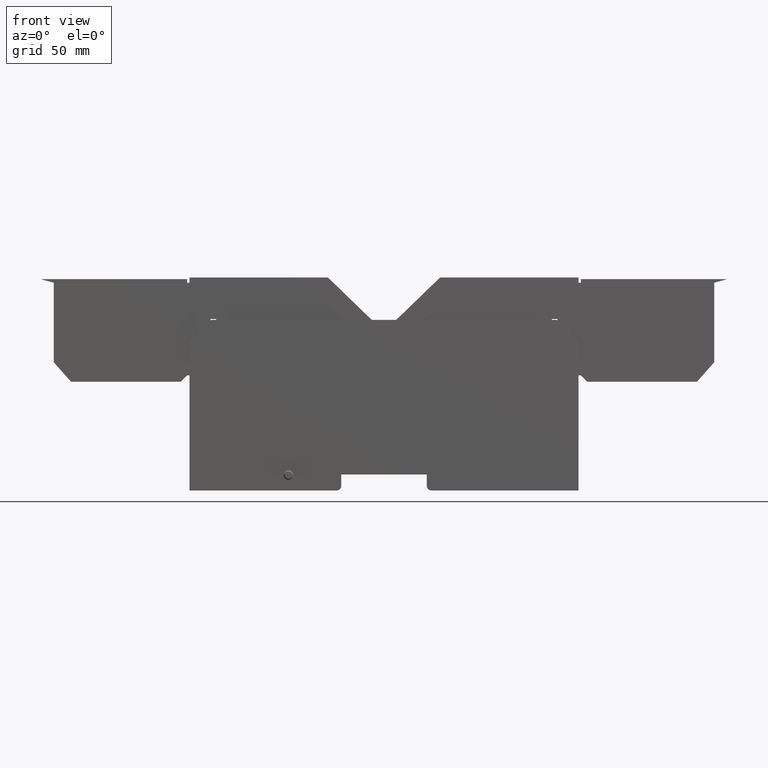
[diagram: clean part render]
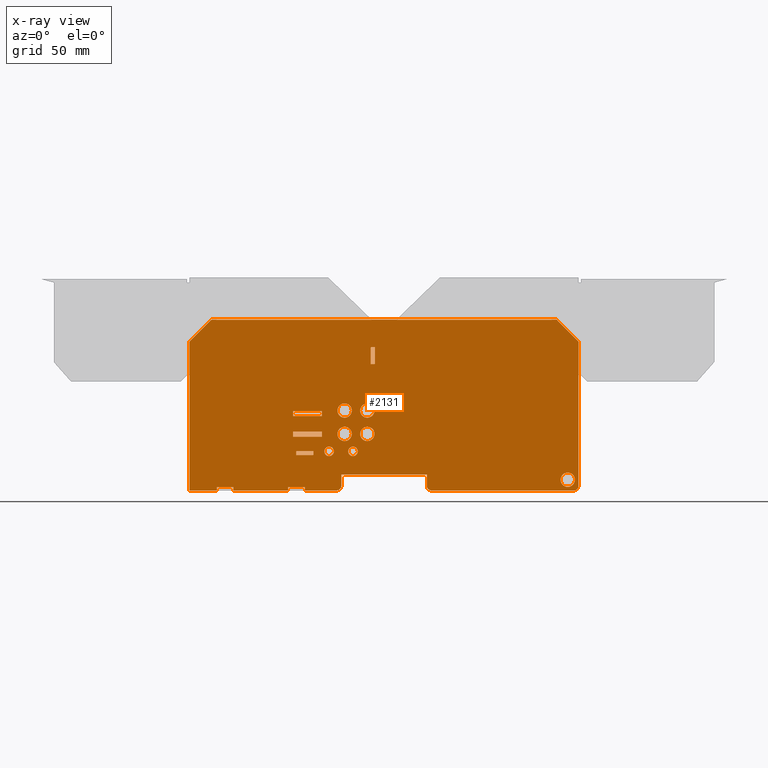
[diagram: x-ray — body ghosted, one internal face saturated and labeled with its STEP entity id]
A machine part, front view, then the same camera in x-ray: the body is ghosted and one INTERNAL B-rep face — a face not visible from any outside direction — is saturated and labeled: STEP entity #2131.
In plain terms, the highlighted planar face has unit normal (0, -1, 0).
Its self-contained STEP definition (entity closure, byte-faithful):
#77=CIRCLE('',#2294,3.);
#80=CIRCLE('',#2299,2.);
#81=CIRCLE('',#2301,2.);
#82=CIRCLE('',#2302,2.);
#83=CIRCLE('',#2303,2.);
#84=CIRCLE('',#2304,2.);
#85=CIRCLE('',#2305,3.);
#86=CIRCLE('',#2306,3.);
#87=CIRCLE('',#2307,3.);
#88=CIRCLE('',#2308,3.);
#184=ORIENTED_EDGE('',*,*,#739,.F.);
#185=ORIENTED_EDGE('',*,*,#740,.T.);
#186=ORIENTED_EDGE('',*,*,#741,.T.);
#187=ORIENTED_EDGE('',*,*,#742,.F.);
#188=ORIENTED_EDGE('',*,*,#743,.T.);
#189=ORIENTED_EDGE('',*,*,#744,.T.);
#190=ORIENTED_EDGE('',*,*,#745,.T.);
#191=ORIENTED_EDGE('',*,*,#746,.T.);
#192=ORIENTED_EDGE('',*,*,#747,.F.);
#193=ORIENTED_EDGE('',*,*,#748,.F.);
#194=ORIENTED_EDGE('',*,*,#749,.T.);
#195=ORIENTED_EDGE('',*,*,#750,.T.);
#196=ORIENTED_EDGE('',*,*,#751,.T.);
#197=ORIENTED_EDGE('',*,*,#752,.F.);
#198=ORIENTED_EDGE('',*,*,#753,.T.);
#199=ORIENTED_EDGE('',*,*,#754,.T.);
#200=ORIENTED_EDGE('',*,*,#755,.T.);
#201=ORIENTED_EDGE('',*,*,#756,.F.);
#202=ORIENTED_EDGE('',*,*,#757,.T.);
#203=ORIENTED_EDGE('',*,*,#758,.F.);
#204=ORIENTED_EDGE('',*,*,#737,.F.);
#205=ORIENTED_EDGE('',*,*,#733,.T.);
#206=ORIENTED_EDGE('',*,*,#759,.F.);
#207=ORIENTED_EDGE('',*,*,#760,.F.);
#208=ORIENTED_EDGE('',*,*,#761,.F.);
#209=ORIENTED_EDGE('',*,*,#762,.F.);
#210=ORIENTED_EDGE('',*,*,#763,.F.);
#211=ORIENTED_EDGE('',*,*,#764,.F.);
#212=ORIENTED_EDGE('',*,*,#720,.F.);
#213=ORIENTED_EDGE('',*,*,#726,.T.);
#214=ORIENTED_EDGE('',*,*,#722,.T.);
#215=ORIENTED_EDGE('',*,*,#725,.T.);
#216=ORIENTED_EDGE('',*,*,#765,.F.);
#217=ORIENTED_EDGE('',*,*,#766,.T.);
#218=ORIENTED_EDGE('',*,*,#767,.F.);
#219=ORIENTED_EDGE('',*,*,#768,.F.);
#220=ORIENTED_EDGE('',*,*,#769,.F.);
#221=ORIENTED_EDGE('',*,*,#770,.T.);
#222=ORIENTED_EDGE('',*,*,#771,.T.);
#223=ORIENTED_EDGE('',*,*,#772,.T.);
#224=ORIENTED_EDGE('',*,*,#773,.T.);
#225=ORIENTED_EDGE('',*,*,#774,.T.);
#226=ORIENTED_EDGE('',*,*,#775,.T.);
#227=ORIENTED_EDGE('',*,*,#776,.F.);
#720=EDGE_CURVE('',#1005,#1006,#1214,.T.);
#722=EDGE_CURVE('',#1007,#1008,#1216,.T.);
#725=EDGE_CURVE('',#1008,#1006,#1219,.T.);
#726=EDGE_CURVE('',#1005,#1007,#1220,.T.);
#733=EDGE_CURVE('',#1015,#1015,#77,.T.);
#737=EDGE_CURVE('',#1019,#1020,#80,.T.);
#739=EDGE_CURVE('',#1021,#1019,#1223,.T.);
#740=EDGE_CURVE('',#1021,#1022,#81,.T.);
#741=EDGE_CURVE('',#1022,#1023,#1224,.T.);
#742=EDGE_CURVE('',#1024,#1023,#1225,.T.);
#743=EDGE_CURVE('',#1024,#1025,#1226,.T.);
#744=EDGE_CURVE('',#1025,#1026,#82,.T.);
#745=EDGE_CURVE('',#1026,#1027,#1227,.T.);
#746=EDGE_CURVE('',#1027,#1028,#1228,.T.);
#747=EDGE_CURVE('',#1029,#1028,#1229,.T.);
#748=EDGE_CURVE('',#1030,#1029,#1230,.T.);
#749=EDGE_CURVE('',#1030,#1031,#1231,.T.);
#750=EDGE_CURVE('',#1031,#1032,#1232,.T.);
#751=EDGE_CURVE('',#1032,#1033,#1233,.T.);
#752=EDGE_CURVE('',#1034,#1033,#1234,.T.);
#753=EDGE_CURVE('',#1034,#1035,#1235,.T.);
#754=EDGE_CURVE('',#1035,#1036,#1236,.T.);
#755=EDGE_CURVE('',#1036,#1037,#1237,.T.);
#756=EDGE_CURVE('',#1038,#1037,#1238,.T.);
#757=EDGE_CURVE('',#1038,#1039,#1239,.T.);
#758=EDGE_CURVE('',#1020,#1039,#1240,.T.);
#759=EDGE_CURVE('',#1040,#1040,#83,.T.);
#760=EDGE_CURVE('',#1041,#1041,#84,.T.);
#761=EDGE_CURVE('',#1042,#1042,#85,.T.);
#762=EDGE_CURVE('',#1043,#1043,#86,.T.);
#763=EDGE_CURVE('',#1044,#1044,#87,.T.);
#764=EDGE_CURVE('',#1045,#1045,#88,.T.);
#765=EDGE_CURVE('',#1046,#1047,#1241,.T.);
#766=EDGE_CURVE('',#1046,#1048,#1242,.T.);
#767=EDGE_CURVE('',#1049,#1048,#1243,.T.);
#768=EDGE_CURVE('',#1047,#1049,#1244,.T.);
#769=EDGE_CURVE('',#1050,#1051,#1245,.T.);
#770=EDGE_CURVE('',#1050,#1052,#1246,.T.);
#771=EDGE_CURVE('',#1052,#1053,#1247,.T.);
#772=EDGE_CURVE('',#1053,#1051,#1248,.T.);
#773=EDGE_CURVE('',#1054,#1055,#1249,.T.);
#774=EDGE_CURVE('',#1055,#1056,#1250,.T.);
#775=EDGE_CURVE('',#1056,#1057,#1251,.T.);
#776=EDGE_CURVE('',#1054,#1057,#1252,.T.);
#1005=VERTEX_POINT('',#3109);
#1006=VERTEX_POINT('',#3111);
#1007=VERTEX_POINT('',#3115);
#1008=VERTEX_POINT('',#3116);
#1015=VERTEX_POINT('',#3142);
#1019=VERTEX_POINT('',#3151);
#1020=VERTEX_POINT('',#3153);
#1021=VERTEX_POINT('',#3157);
#1022=VERTEX_POINT('',#3159);
#1023=VERTEX_POINT('',#3161);
#1024=VERTEX_POINT('',#3163);
#1025=VERTEX_POINT('',#3165);
#1026=VERTEX_POINT('',#3167);
#1027=VERTEX_POINT('',#3169);
#1028=VERTEX_POINT('',#3171);
#1029=VERTEX_POINT('',#3173);
#1030=VERTEX_POINT('',#3175);
#1031=VERTEX_POINT('',#3177);
#1032=VERTEX_POINT('',#3179);
#1033=VERTEX_POINT('',#3181);
#1034=VERTEX_POINT('',#3183);
#1035=VERTEX_POINT('',#3185);
#1036=VERTEX_POINT('',#3187);
#1037=VERTEX_POINT('',#3189);
#1038=VERTEX_POINT('',#3191);
#1039=VERTEX_POINT('',#3193);
#1040=VERTEX_POINT('',#3196);
#1041=VERTEX_POINT('',#3198);
#1042=VERTEX_POINT('',#3200);
#1043=VERTEX_POINT('',#3202);
#1044=VERTEX_POINT('',#3204);
#1045=VERTEX_POINT('',#3206);
#1046=VERTEX_POINT('',#3208);
#1047=VERTEX_POINT('',#3209);
#1048=VERTEX_POINT('',#3211);
#1049=VERTEX_POINT('',#3213);
#1050=VERTEX_POINT('',#3216);
#1051=VERTEX_POINT('',#3217);
#1052=VERTEX_POINT('',#3219);
#1053=VERTEX_POINT('',#3221);
#1054=VERTEX_POINT('',#3224);
#1055=VERTEX_POINT('',#3225);
#1056=VERTEX_POINT('',#3227);
#1057=VERTEX_POINT('',#3229);
#1214=LINE('',#3110,#1450);
#1216=LINE('',#3114,#1452);
#1219=LINE('',#3120,#1455);
#1220=LINE('',#3122,#1456);
#1223=LINE('',#3156,#1459);
#1224=LINE('',#3160,#1460);
#1225=LINE('',#3162,#1461);
#1226=LINE('',#3164,#1462);
#1227=LINE('',#3168,#1463);
#1228=LINE('',#3170,#1464);
#1229=LINE('',#3172,#1465);
#1230=LINE('',#3174,#1466);
#1231=LINE('',#3176,#1467);
#1232=LINE('',#3178,#1468);
#1233=LINE('',#3180,#1469);
#1234=LINE('',#3182,#1470);
#1235=LINE('',#3184,#1471);
#1236=LINE('',#3186,#1472);
#1237=LINE('',#3188,#1473);
#1238=LINE('',#3190,#1474);
#1239=LINE('',#3192,#1475);
#1240=LINE('',#3194,#1476);
#1241=LINE('',#3207,#1477);
#1242=LINE('',#3210,#1478);
#1243=LINE('',#3212,#1479);
#1244=LINE('',#3214,#1480);
#1245=LINE('',#3215,#1481);
#1246=LINE('',#3218,#1482);
#1247=LINE('',#3220,#1483);
#1248=LINE('',#3222,#1484);
#1249=LINE('',#3223,#1485);
#1250=LINE('',#3226,#1486);
#1251=LINE('',#3228,#1487);
#1252=LINE('',#3230,#1488);
#1450=VECTOR('',#2492,1000.);
#1452=VECTOR('',#2496,1000.);
#1455=VECTOR('',#2501,1000.);
#1456=VECTOR('',#2504,1000.);
#1459=VECTOR('',#2545,1000.);
#1460=VECTOR('',#2548,1000.);
#1461=VECTOR('',#2549,1000.);
#1462=VECTOR('',#2550,1000.);
#1463=VECTOR('',#2553,1000.);
#1464=VECTOR('',#2554,1000.);
#1465=VECTOR('',#2555,1000.);
#1466=VECTOR('',#2556,1000.);
#1467=VECTOR('',#2557,1000.);
#1468=VECTOR('',#2558,1000.);
#1469=VECTOR('',#2559,1000.);
#1470=VECTOR('',#2560,1000.);
#1471=VECTOR('',#2561,1000.);
#1472=VECTOR('',#2562,1000.);
#1473=VECTOR('',#2563,1000.);
#1474=VECTOR('',#2564,1000.);
#1475=VECTOR('',#2565,1000.);
#1476=VECTOR('',#2566,1000.);
#1477=VECTOR('',#2579,1000.);
#1478=VECTOR('',#2580,1000.);
#1479=VECTOR('',#2581,1000.);
#1480=VECTOR('',#2582,1000.);
#1481=VECTOR('',#2583,1000.);
#1482=VECTOR('',#2584,1000.);
#1483=VECTOR('',#2585,1000.);
#1484=VECTOR('',#2586,1000.);
#1485=VECTOR('',#2587,1000.);
#1486=VECTOR('',#2588,1000.);
#1487=VECTOR('',#2589,1000.);
#1488=VECTOR('',#2590,1000.);
#1694=EDGE_LOOP('',(#184,#185,#186,#187,#188,#189,#190,#191,#192,#193,#194,
#195,#196,#197,#198,#199,#200,#201,#202,#203,#204));
#1695=EDGE_LOOP('',(#205));
#1696=EDGE_LOOP('',(#206));
#1697=EDGE_LOOP('',(#207));
#1698=EDGE_LOOP('',(#208));
#1699=EDGE_LOOP('',(#209));
#1700=EDGE_LOOP('',(#210));
#1701=EDGE_LOOP('',(#211));
#1702=EDGE_LOOP('',(#212,#213,#214,#215));
#1703=EDGE_LOOP('',(#216,#217,#218,#219));
#1704=EDGE_LOOP('',(#220,#221,#222,#223));
#1705=EDGE_LOOP('',(#224,#225,#226,#227));
#1866=FACE_BOUND('',#1694,.T.);
#1867=FACE_BOUND('',#1695,.T.);
#1868=FACE_BOUND('',#1696,.T.);
#1869=FACE_BOUND('',#1697,.T.);
#1870=FACE_BOUND('',#1698,.T.);
#1871=FACE_BOUND('',#1699,.T.);
#1872=FACE_BOUND('',#1700,.T.);
#1873=FACE_BOUND('',#1701,.T.);
#1874=FACE_BOUND('',#1702,.T.);
#1875=FACE_BOUND('',#1703,.T.);
#1876=FACE_BOUND('',#1704,.T.);
#1877=FACE_BOUND('',#1705,.T.);
#2025=PLANE('',#2300);
#2131=ADVANCED_FACE('',(#1866,#1867,#1868,#1869,#1870,#1871,#1872,#1873,
#1874,#1875,#1876,#1877),#2025,.F.);
#2294=AXIS2_PLACEMENT_3D('',#3141,#2529,#2530);
#2299=AXIS2_PLACEMENT_3D('',#3152,#2540,#2541);
#2300=AXIS2_PLACEMENT_3D('',#3155,#2543,#2544);
#2301=AXIS2_PLACEMENT_3D('',#3158,#2546,#2547);
#2302=AXIS2_PLACEMENT_3D('',#3166,#2551,#2552);
#2303=AXIS2_PLACEMENT_3D('',#3195,#2567,#2568);
#2304=AXIS2_PLACEMENT_3D('',#3197,#2569,#2570);
#2305=AXIS2_PLACEMENT_3D('',#3199,#2571,#2572);
#2306=AXIS2_PLACEMENT_3D('',#3201,#2573,#2574);
#2307=AXIS2_PLACEMENT_3D('',#3203,#2575,#2576);
#2308=AXIS2_PLACEMENT_3D('',#3205,#2577,#2578);
#2492=DIRECTION('',(-1.38777878078145E-15,0.,-1.));
#2496=DIRECTION('',(-1.38777878078145E-15,0.,-1.));
#2501=DIRECTION('',(1.,0.,-1.38777878078145E-15));
#2504=DIRECTION('',(-1.,0.,1.38777878078145E-15));
#2529=DIRECTION('',(0.,-1.,0.));
#2530=DIRECTION('',(-1.,0.,0.));
#2540=DIRECTION('',(0.,-1.,0.));
#2541=DIRECTION('',(-1.,0.,0.));
#2543=DIRECTION('',(0.,-1.,0.));
#2544=DIRECTION('',(0.,0.,-1.));
#2545=DIRECTION('',(1.,0.,-5.78241158658936E-15));
#2546=DIRECTION('',(0.,1.,0.));
#2547=DIRECTION('',(0.,0.,1.));
#2548=DIRECTION('',(5.90544162034658E-15,0.,1.));
#2549=DIRECTION('',(1.,0.,0.));
#2550=DIRECTION('',(7.38180202543323E-15,0.,-1.));
#2551=DIRECTION('',(0.,1.,0.));
#2552=DIRECTION('',(0.,0.,1.));
#2553=DIRECTION('',(-1.,0.,-5.78241158658936E-15));
#2554=DIRECTION('',(0.,0.,1.));
#2555=DIRECTION('',(1.,0.,0.));
#2556=DIRECTION('',(0.,0.,1.));
#2557=DIRECTION('',(-1.,0.,-5.78241158658936E-15));
#2558=DIRECTION('',(0.,0.,1.));
#2559=DIRECTION('',(-1.,0.,0.));
#2560=DIRECTION('',(0.,0.,1.));
#2561=DIRECTION('',(-1.,0.,-5.78241158658936E-15));
#2562=DIRECTION('',(1.98254111540207E-15,0.,1.));
#2563=DIRECTION('',(0.707106781186599,0.,0.707106781186496));
#2564=DIRECTION('',(-1.,0.,0.));
#2565=DIRECTION('',(0.707106781186606,0.,-0.707106781186489));
#2566=DIRECTION('',(-1.98254111540207E-15,0.,1.));
#2567=DIRECTION('',(0.,1.,0.));
#2568=DIRECTION('',(0.,0.,1.));
#2569=DIRECTION('',(0.,1.,0.));
#2570=DIRECTION('',(0.,0.,1.));
#2571=DIRECTION('',(0.,1.,0.));
#2572=DIRECTION('',(0.,0.,1.));
#2573=DIRECTION('',(0.,1.,0.));
#2574=DIRECTION('',(-1.,0.,0.));
#2575=DIRECTION('',(0.,1.,0.));
#2576=DIRECTION('',(0.,0.,1.));
#2577=DIRECTION('',(0.,1.,0.));
#2578=DIRECTION('',(-1.,0.,0.));
#2579=DIRECTION('',(0.,0.,-1.));
#2580=DIRECTION('',(-1.,0.,0.));
#2581=DIRECTION('',(0.,0.,1.));
#2582=DIRECTION('',(-1.,0.,0.));
#2583=DIRECTION('',(0.,0.,-1.));
#2584=DIRECTION('',(-1.,0.,0.));
#2585=DIRECTION('',(0.,0.,-1.));
#2586=DIRECTION('',(1.,0.,0.));
#2587=DIRECTION('',(1.,0.,0.));
#2588=DIRECTION('',(0.,0.,1.));
#2589=DIRECTION('',(-1.,0.,0.));
#2590=DIRECTION('',(0.,0.,1.));
#3109=CARTESIAN_POINT('',(-29.65,27.5,-15.6900000000002));
#3110=CARTESIAN_POINT('',(-29.65,27.5,-16.4364337369843));
#3111=CARTESIAN_POINT('',(-29.65,27.5,-17.3497397922821));
#3114=CARTESIAN_POINT('',(-36.75,27.5,-16.4364337369843));
#3115=CARTESIAN_POINT('',(-36.75,27.5,-15.6900000000002));
#3116=CARTESIAN_POINT('',(-36.75,27.5,-17.349739792282));
#3120=CARTESIAN_POINT('',(-29.65,27.5,-17.3497397922821));
#3122=CARTESIAN_POINT('',(-29.65,27.5,-15.6900000000002));
#3141=CARTESIAN_POINT('',(77.0000000000001,27.5,-27.6900000000008));
#3142=CARTESIAN_POINT('',(74.0000000000001,27.5,-27.6900000000008));
#3151=CARTESIAN_POINT('',(79.5000000000002,27.5,-32.1900000000008));
#3152=CARTESIAN_POINT('',(79.5000000000002,27.5,-30.1900000000008));
#3153=CARTESIAN_POINT('',(81.5000000000002,27.5,-30.1900000000008));
#3155=CARTESIAN_POINT('',(79.5000000000002,27.5,-30.1900000000008));
#3156=CARTESIAN_POINT('',(79.5000000000002,27.5,-32.1900000000008));
#3157=CARTESIAN_POINT('',(19.9,27.5,-32.1900000000005));
#3158=CARTESIAN_POINT('',(19.9,27.5,-30.1900000000005));
#3159=CARTESIAN_POINT('',(17.9,27.5,-30.1900000000005));
#3160=CARTESIAN_POINT('',(17.9,27.5,-30.1900000000005));
#3161=CARTESIAN_POINT('',(17.9,27.5,-25.4900000000005));
#3162=CARTESIAN_POINT('',(-2.30000000000001,27.5,-25.4900000000005));
#3163=CARTESIAN_POINT('',(-17.9,27.5,-25.4900000000005));
#3164=CARTESIAN_POINT('',(-17.9,27.5,-25.4900000000005));
#3165=CARTESIAN_POINT('',(-17.9,27.5,-30.1900000000005));
#3166=CARTESIAN_POINT('',(-19.9,27.5,-30.1900000000005));
#3167=CARTESIAN_POINT('',(-19.9,27.5,-32.1900000000005));
#3168=CARTESIAN_POINT('',(-79.5000000000002,27.5,-32.1900000000008));
#3169=CARTESIAN_POINT('',(-33.185,27.5,-32.1900000000004));
#3170=CARTESIAN_POINT('',(-33.185,27.5,-29.6900000000009));
#3171=CARTESIAN_POINT('',(-33.185,27.5,-30.7169266654476));
#3172=CARTESIAN_POINT('',(-33.185,27.5,-30.7169266654476));
#3173=CARTESIAN_POINT('',(-40.185,27.5,-30.7169266654476));
#3174=CARTESIAN_POINT('',(-40.185,27.5,-29.6900000000009));
#3175=CARTESIAN_POINT('',(-40.185,27.5,-32.1900000000005));
#3176=CARTESIAN_POINT('',(-79.5000000000002,27.5,-32.1900000000008));
#3177=CARTESIAN_POINT('',(-63.06,27.5,-32.1900000000007));
#3178=CARTESIAN_POINT('',(-63.06,27.5,-29.5326948246166));
#3179=CARTESIAN_POINT('',(-63.06,27.5,-30.7169266654476));
#3180=CARTESIAN_POINT('',(-63.06,27.5,-30.7169266654476));
#3181=CARTESIAN_POINT('',(-70.06,27.5,-30.7169266654476));
#3182=CARTESIAN_POINT('',(-70.06,27.5,-29.5326948246166));
#3183=CARTESIAN_POINT('',(-70.06,27.5,-32.1900000000008));
#3184=CARTESIAN_POINT('',(-79.5000000000002,27.5,-32.1900000000008));
#3185=CARTESIAN_POINT('',(-81.5000000000002,27.5,-32.1900000000009));
#3186=CARTESIAN_POINT('',(-81.5000000000001,27.5,-23.1900000000008));
#3187=CARTESIAN_POINT('',(-81.5,27.5,30.1900000000008));
#3188=CARTESIAN_POINT('',(-81.5,27.5,30.1900000000008));
#3189=CARTESIAN_POINT('',(-72.3799999999986,27.5,39.3100000000009));
#3190=CARTESIAN_POINT('',(9.,27.5,39.3099999999995));
#3191=CARTESIAN_POINT('',(72.3800000000001,27.5,39.3099999999994));
#3192=CARTESIAN_POINT('',(81.5,27.5,30.1900000000009));
#3193=CARTESIAN_POINT('',(81.5,27.5,30.1900000000009));
#3194=CARTESIAN_POINT('',(81.5000000000001,27.5,-23.1900000000008));
#3195=CARTESIAN_POINT('',(-23.,27.5,-15.79));
#3196=CARTESIAN_POINT('',(-23.,27.5,-13.79));
#3197=CARTESIAN_POINT('',(-13.,27.5,-15.79));
#3198=CARTESIAN_POINT('',(-13.,27.5,-13.79));
#3199=CARTESIAN_POINT('',(-7.,27.5,-8.49000000000001));
#3200=CARTESIAN_POINT('',(-7.,27.5,-5.49000000000001));
#3201=CARTESIAN_POINT('',(-16.5,27.5,-8.49000000000001));
#3202=CARTESIAN_POINT('',(-19.5,27.5,-8.49000000000001));
#3203=CARTESIAN_POINT('',(-16.5,27.5,1.30999999999999));
#3204=CARTESIAN_POINT('',(-16.5,27.5,4.30999999999999));
#3205=CARTESIAN_POINT('',(-7.,27.5,1.30999999999999));
#3206=CARTESIAN_POINT('',(-10.,27.5,1.30999999999999));
#3207=CARTESIAN_POINT('',(-3.90000000000031,27.5,27.81));
#3208=CARTESIAN_POINT('',(-3.90000000000027,27.5,27.81));
#3209=CARTESIAN_POINT('',(-3.90000000000027,27.5,20.81));
#3210=CARTESIAN_POINT('',(-4.64555361755352,27.5,27.81));
#3211=CARTESIAN_POINT('',(-5.56148579429666,27.5,27.81));
#3212=CARTESIAN_POINT('',(-5.56148579429666,27.5,27.81));
#3213=CARTESIAN_POINT('',(-5.56148579429666,27.5,20.81));
#3214=CARTESIAN_POINT('',(-4.64555361755352,27.5,20.81));
#3215=CARTESIAN_POINT('',(-26.05,27.5,2.99648652663257));
#3216=CARTESIAN_POINT('',(-26.05,27.5,1.1242597162395));
#3217=CARTESIAN_POINT('',(-26.05,27.5,-1.00351347336743));
#3218=CARTESIAN_POINT('',(-26.05,27.5,1.1242597162395));
#3219=CARTESIAN_POINT('',(-38.15,27.5,1.1242597162395));
#3220=CARTESIAN_POINT('',(-38.15,27.5,2.99648652663257));
#3221=CARTESIAN_POINT('',(-38.15,27.5,-1.00351347336743));
#3222=CARTESIAN_POINT('',(-26.05,27.5,-1.00351347336743));
#3223=CARTESIAN_POINT('',(-26.05,27.5,-9.65351347336743));
#3224=CARTESIAN_POINT('',(-38.15,27.5,-9.65351347336743));
#3225=CARTESIAN_POINT('',(-26.05,27.5,-9.65351347336743));
#3226=CARTESIAN_POINT('',(-26.05,27.5,-5.86492519435504));
#3227=CARTESIAN_POINT('',(-26.05,27.5,-7.5257402837605));
#3228=CARTESIAN_POINT('',(-26.05,27.5,-7.5257402837605));
#3229=CARTESIAN_POINT('',(-38.15,27.5,-7.5257402837605));
#3230=CARTESIAN_POINT('',(-38.15,27.5,-5.86492519435504));